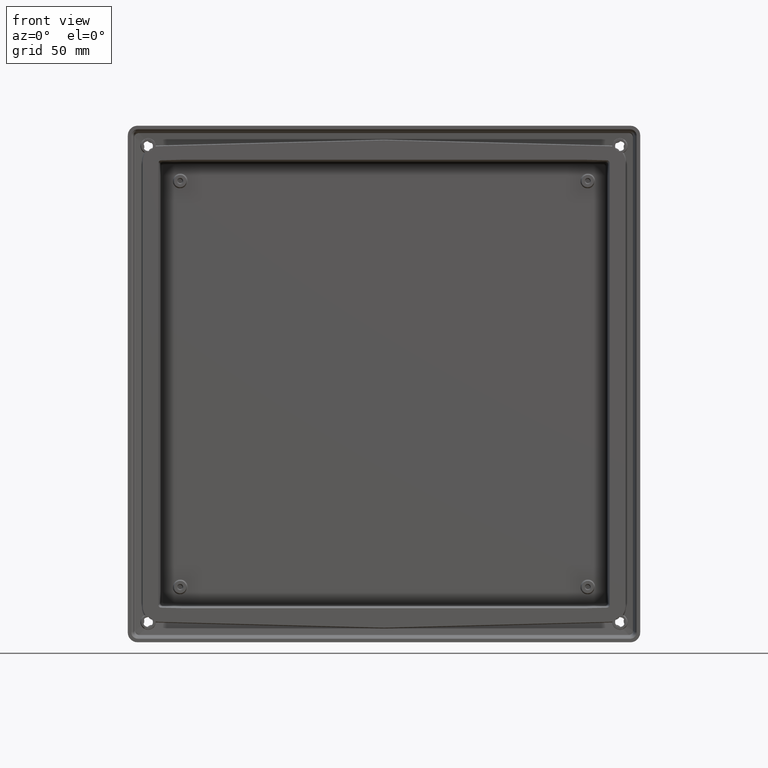
[diagram: clean part render]
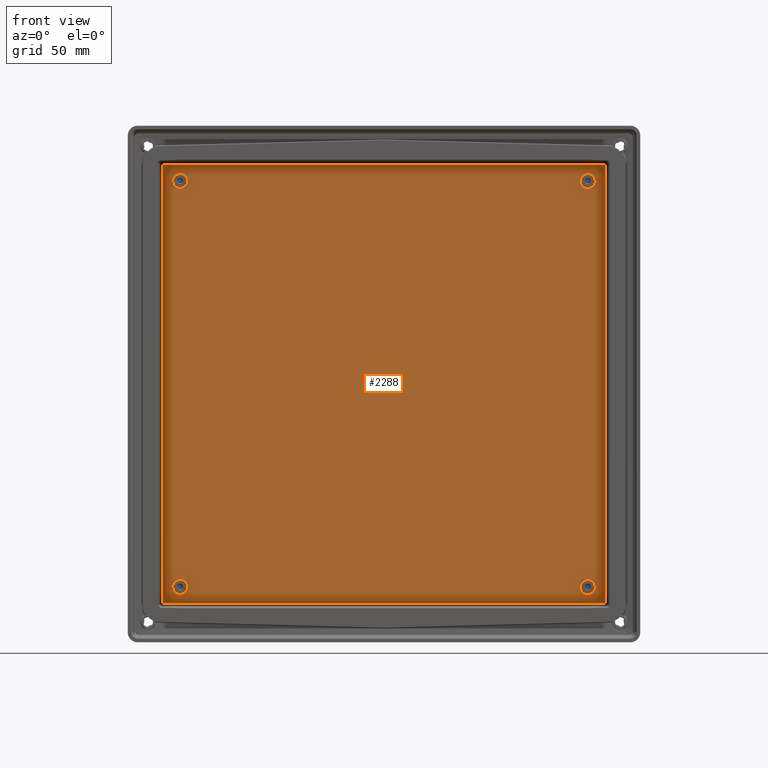
[diagram: same view with one face highlighted and labeled with its STEP entity id]
A machine part, front view. The second image highlights one B-rep face of the part: STEP entity #2288.
In plain terms, the highlighted planar face has unit normal (0, -1, -0).
Its self-contained STEP definition (entity closure, byte-faithful):
#272 = EDGE_CURVE ( 'NONE', #4415, #4402, #6032, .T. ) ;
#462 = EDGE_CURVE ( 'NONE', #3760, #3759, #6761, .T. ) ;
#480 = EDGE_CURVE ( 'NONE', #4885, #4884, #6762, .T. ) ;
#515 = VERTEX_POINT ( 'NONE', #6918 ) ;
#517 = EDGE_CURVE ( 'NONE', #515, #532, #6951, .T. ) ;
#526 = VERTEX_POINT ( 'NONE', #7014 ) ;
#528 = EDGE_CURVE ( 'NONE', #526, #515, #7052, .T. ) ;
#532 = VERTEX_POINT ( 'NONE', #7051 ) ;
#534 = EDGE_CURVE ( 'NONE', #532, #554, #7084, .T. ) ;
#554 = VERTEX_POINT ( 'NONE', #7166 ) ;
#588 = VERTEX_POINT ( 'NONE', #7229 ) ;
#590 = EDGE_CURVE ( 'NONE', #526, #588, #7228, .T. ) ;
#600 = EDGE_CURVE ( 'NONE', #4406, #617, #7285, .T. ) ;
#608 = EDGE_CURVE ( 'NONE', #554, #609, #7271, .T. ) ;
#609 = VERTEX_POINT ( 'NONE', #7270 ) ;
#616 = EDGE_CURVE ( 'NONE', #617, #609, #7292, .T. ) ;
#617 = VERTEX_POINT ( 'NONE', #7288 ) ;
#2268 = EDGE_LOOP ( 'NONE', ( #2269, #2270 ) ) ;
#2269 = ORIENTED_EDGE ( 'NONE', *, *, #4072, .F. ) ;
#2270 = ORIENTED_EDGE ( 'NONE', *, *, #3366, .F. ) ;
#2272 = EDGE_LOOP ( 'NONE', ( #2274, #2275, #2277, #2279, #2280, #2281, #2385, #2386, #2387, #2388, #2390, #2392, #2394, #2395 ) ) ;
#2274 = ORIENTED_EDGE ( 'NONE', *, *, #600, .T. ) ;
#2275 = ORIENTED_EDGE ( 'NONE', *, *, #616, .T. ) ;
#2277 = ORIENTED_EDGE ( 'NONE', *, *, #608, .F. ) ;
#2279 = ORIENTED_EDGE ( 'NONE', *, *, #534, .F. ) ;
#2280 = ORIENTED_EDGE ( 'NONE', *, *, #517, .F. ) ;
#2281 = ORIENTED_EDGE ( 'NONE', *, *, #528, .F. ) ;
#2288 = ADVANCED_FACE ( 'NONE', ( #11869, #11868, #11867, #11866, #11865 ), #11891, .T. ) ;
#2289 = EDGE_LOOP ( 'NONE', ( #2290, #2291 ) ) ;
#2290 = ORIENTED_EDGE ( 'NONE', *, *, #462, .T. ) ;
#2291 = ORIENTED_EDGE ( 'NONE', *, *, #3796, .T. ) ;
#2294 = EDGE_LOOP ( 'NONE', ( #2296, #2298 ) ) ;
#2296 = ORIENTED_EDGE ( 'NONE', *, *, #480, .T. ) ;
#2298 = ORIENTED_EDGE ( 'NONE', *, *, #4883, .T. ) ;
#2302 = EDGE_LOOP ( 'NONE', ( #2304, #2398 ) ) ;
#2304 = ORIENTED_EDGE ( 'NONE', *, *, #4625, .F. ) ;
#2385 = ORIENTED_EDGE ( 'NONE', *, *, #590, .T. ) ;
#2386 = ORIENTED_EDGE ( 'NONE', *, *, #3154, .T. ) ;
#2387 = ORIENTED_EDGE ( 'NONE', *, *, #4381, .F. ) ;
#2388 = ORIENTED_EDGE ( 'NONE', *, *, #4385, .T. ) ;
#2390 = ORIENTED_EDGE ( 'NONE', *, *, #4394, .T. ) ;
#2392 = ORIENTED_EDGE ( 'NONE', *, *, #4419, .T. ) ;
#2394 = ORIENTED_EDGE ( 'NONE', *, *, #272, .T. ) ;
#2395 = ORIENTED_EDGE ( 'NONE', *, *, #4409, .F. ) ;
#2398 = ORIENTED_EDGE ( 'NONE', *, *, #3369, .F. ) ;
#3154 = EDGE_CURVE ( 'NONE', #588, #4383, #13066, .T. ) ;
#3352 = VERTEX_POINT ( 'NONE', #13433 ) ;
#3364 = VERTEX_POINT ( 'NONE', #13441 ) ;
#3366 = EDGE_CURVE ( 'NONE', #3352, #3403, #13438, .T. ) ;
#3369 = EDGE_CURVE ( 'NONE', #3364, #3402, #13464, .T. ) ;
#3402 = VERTEX_POINT ( 'NONE', #13539 ) ;
#3403 = VERTEX_POINT ( 'NONE', #13538 ) ;
#3759 = VERTEX_POINT ( 'NONE', #14293 ) ;
#3760 = VERTEX_POINT ( 'NONE', #14292 ) ;
#3796 = EDGE_CURVE ( 'NONE', #3759, #3760, #14410, .T. ) ;
#4072 = EDGE_CURVE ( 'NONE', #3403, #3352, #15015, .T. ) ;
#4375 = VERTEX_POINT ( 'NONE', #15368 ) ;
#4381 = EDGE_CURVE ( 'NONE', #4399, #4383, #15402, .T. ) ;
#4383 = VERTEX_POINT ( 'NONE', #15391 ) ;
#4385 = EDGE_CURVE ( 'NONE', #4399, #4375, #15419, .T. ) ;
#4394 = EDGE_CURVE ( 'NONE', #4375, #4396, #15438, .T. ) ;
#4396 = VERTEX_POINT ( 'NONE', #15476 ) ;
#4399 = VERTEX_POINT ( 'NONE', #15475 ) ;
#4402 = VERTEX_POINT ( 'NONE', #15473 ) ;
#4406 = VERTEX_POINT ( 'NONE', #15467 ) ;
#4409 = EDGE_CURVE ( 'NONE', #4406, #4402, #15492, .T. ) ;
#4415 = VERTEX_POINT ( 'NONE', #15488 ) ;
#4419 = EDGE_CURVE ( 'NONE', #4396, #4415, #15480, .T. ) ;
#4625 = EDGE_CURVE ( 'NONE', #3402, #3364, #16001, .T. ) ;
#4883 = EDGE_CURVE ( 'NONE', #4884, #4885, #16649, .T. ) ;
#4884 = VERTEX_POINT ( 'NONE', #16648 ) ;
#4885 = VERTEX_POINT ( 'NONE', #16650 ) ;
#6032 = B_SPLINE_CURVE_WITH_KNOTS ( 'NONE', 3,
 ( #6053, #6052, #6051, #6050, #6049, #6048 ),
 .UNSPECIFIED., .F., .F.,
 ( 4, 1, 1, 4 ),
 ( 0.0000000000000000000, 0.0001286256969228537900, 0.0002554668567451399800, 0.0003845825721337195400 ),
 .UNSPECIFIED. ) ;
#6048 = CARTESIAN_POINT ( 'NONE',  ( -123.9672560892429700, 30.59999999999999800, -123.4263669262850300 ) ) ;
#6049 = CARTESIAN_POINT ( 'NONE',  ( -124.0113291131254100, 30.59999999999999100, -123.4250124329279900 ) ) ;
#6050 = CARTESIAN_POINT ( 'NONE',  ( -124.0950999604487800, 30.60000000000000100, -123.4119812375552100 ) ) ;
#6051 = CARTESIAN_POINT ( 'NONE',  ( -124.2148313400941100, 30.59999999999999800, -123.3596219549187800 ) ) ;
#6052 = CARTESIAN_POINT ( 'NONE',  ( -124.2811274808965200, 30.59999999999999400, -123.3070358784442400 ) ) ;
#6053 = CARTESIAN_POINT ( 'NONE',  ( -124.3119224345850000, 30.59999999999999800, -123.2757151033670200 ) ) ;
#6747 = CARTESIAN_POINT ( 'NONE',  ( 114.7500000000000000, 30.60000000000000100, 110.0671556125964500 ) ) ;
#6748 = CARTESIAN_POINT ( 'NONE',  ( 115.2139259025434900, 30.60000000000000100, 110.0707175609213000 ) ) ;
#6749 = CARTESIAN_POINT ( 'NONE',  ( 116.0900247012520500, 30.60000000000000100, 110.2096243394791800 ) ) ;
#6750 = CARTESIAN_POINT ( 'NONE',  ( 117.3036622821863700, 30.60000000000000100, 110.8349760655702200 ) ) ;
#6751 = CARTESIAN_POINT ( 'NONE',  ( 118.2465816309453100, 30.60000000000000500, 111.7937700044578700 ) ) ;
#6752 = CARTESIAN_POINT ( 'NONE',  ( 118.8487745289157300, 30.59999999999999800, 112.9917617618990700 ) ) ;
#6753 = CARTESIAN_POINT ( 'NONE',  ( 119.0526510000454900, 30.60000000000000100, 114.3172440723050200 ) ) ;
#6754 = CARTESIAN_POINT ( 'NONE',  ( 118.8383528366937600, 30.59999999999999800, 115.6400547522702300 ) ) ;
#6755 = CARTESIAN_POINT ( 'NONE',  ( 118.2291093426102700, 30.59999999999999800, 116.8291189268627200 ) ) ;
#6756 = CARTESIAN_POINT ( 'NONE',  ( 117.2873423866218400, 30.60000000000001200, 117.7753126559558200 ) ) ;
#6757 = CARTESIAN_POINT ( 'NONE',  ( 116.0816868034681000, 30.59999999999999400, 118.3920151684649400 ) ) ;
#6758 = CARTESIAN_POINT ( 'NONE',  ( 115.2116803573269600, 30.60000000000000900, 118.5293551732216200 ) ) ;
#6759 = CARTESIAN_POINT ( 'NONE',  ( 114.7500000000000000, 30.60000000000000100, 118.5328443874035400 ) ) ;
#6761 = B_SPLINE_CURVE_WITH_KNOTS ( 'NONE', 3,
 ( #6759, #6758, #6757, #6756, #6755, #6754, #6753, #6752, #6751, #6750, #6749, #6748, #6747 ),
 .UNSPECIFIED., .F., .F.,
 ( 4, 1, 1, 1, 1, 1, 1, 1, 1, 1, 4 ),
 ( 0.0000000000000000000, 0.001336172355024017600, 0.002662245945109110500, 0.003971357387798746300, 0.005283179838787769100, 0.006605105878817337500, 0.007926289166284780600, 0.009241207763608982900, 0.01056176399086728800, 0.01190107501762819300, 0.01324324364178452000 ),
 .UNSPECIFIED. ) ;
#6762 = B_SPLINE_CURVE_WITH_KNOTS ( 'NONE', 3,
 ( #6796, #6795, #6794, #6793, #6792, #6832, #6831, #6830, #6829, #6828, #6827, #6826, #6825 ),
 .UNSPECIFIED., .F., .F.,
 ( 4, 1, 1, 1, 1, 1, 1, 1, 1, 1, 4 ),
 ( 0.0000000000000000000, 0.001336170975049366600, 0.002662239487400773200, 0.003971341906226373200, 0.005283152191282326100, 0.006605063685648469900, 0.007926231823170343200, 0.009241136680444933500, 0.01056168214215529900, 0.01190098711050690600, 0.01324315415126927500 ),
 .UNSPECIFIED. ) ;
#6792 = CARTESIAN_POINT ( 'NONE',  ( 118.2290804175725300, 30.59999999999999100, -111.7709012637937900 ) ) ;
#6793 = CARTESIAN_POINT ( 'NONE',  ( 117.2873270654193800, 30.60000000000000500, -110.8247075043015000 ) ) ;
#6794 = CARTESIAN_POINT ( 'NONE',  ( 116.0816840373387900, 30.59999999999999800, -110.2079914829309600 ) ) ;
#6795 = CARTESIAN_POINT ( 'NONE',  ( 115.2116803640092300, 30.59999999999999400, -110.0706467869113100 ) ) ;
#6796 = CARTESIAN_POINT ( 'NONE',  ( 114.7500000000000000, 30.59999999999999800, -110.0671556125964500 ) ) ;
#6825 = CARTESIAN_POINT ( 'NONE',  ( 114.7500000000000000, 30.59999999999999800, -118.5328443874035400 ) ) ;
#6826 = CARTESIAN_POINT ( 'NONE',  ( 115.2139259998007600, 30.59999999999999800, -118.5292803724726300 ) ) ;
#6827 = CARTESIAN_POINT ( 'NONE',  ( 116.0900215758648800, 30.59999999999999100, -118.3903683652125400 ) ) ;
#6828 = CARTESIAN_POINT ( 'NONE',  ( 117.3036438236290600, 30.60000000000000100, -117.7649996961782600 ) ) ;
#6829 = CARTESIAN_POINT ( 'NONE',  ( 118.2465470456645700, 30.59999999999999100, -116.8062060610072600 ) ) ;
#6830 = CARTESIAN_POINT ( 'NONE',  ( 118.8487274637823500, 30.60000000000000100, -115.6082233355156300 ) ) ;
#6831 = CARTESIAN_POINT ( 'NONE',  ( 119.0525994640728600, 30.59999999999998700, -114.2827560488970100 ) ) ;
#6832 = CARTESIAN_POINT ( 'NONE',  ( 118.8383098948030600, 30.59999999999999400, -112.9599590967234000 ) ) ;
#6918 = CARTESIAN_POINT ( 'NONE',  ( 124.4535003197779900, 30.59999999999999800, 122.9272232616049900 ) ) ;
#6948 = DIRECTION ( 'NONE',  ( 0.0000000000000000000, 0.0000000000000000000, -1.000000000000000000 ) ) ;
#6949 = VECTOR ( 'NONE', #6948, 1000.000000000000000 ) ;
#6950 = CARTESIAN_POINT ( 'NONE',  ( 124.4535003197779900, 30.59999999999999800, 6.938893903907228400E-015 ) ) ;
#6951 = LINE ( 'NONE', #6950, #6949 ) ;
#7014 = CARTESIAN_POINT ( 'NONE',  ( 123.9672560892585400, 30.59999999999999800, 123.4263669262821800 ) ) ;
#7045 = CARTESIAN_POINT ( 'NONE',  ( 124.0720234315977400, 30.59999006879729300, 123.4082272750438100 ) ) ;
#7046 = CARTESIAN_POINT ( 'NONE',  ( 124.0546071313658100, 30.59999239599920200, 123.4125815830251600 ) ) ;
#7047 = CARTESIAN_POINT ( 'NONE',  ( 124.0076681379355500, 30.59999798333080500, 123.4224237169338100 ) ) ;
#7048 = CARTESIAN_POINT ( 'NONE',  ( 123.9835150808930800, 30.59999984667859300, 123.4248160824459600 ) ) ;
#7049 = CARTESIAN_POINT ( 'NONE',  ( 123.9672560892585400, 30.59999999999999800, 123.4263669262821800 ) ) ;
#7051 = CARTESIAN_POINT ( 'NONE',  ( 124.4535003197779900, 30.59999999999999800, -122.9272232616049800 ) ) ;
#7052 = B_SPLINE_CURVE_WITH_KNOTS ( 'NONE', 3,
 ( #7049, #7048, #7047, #7046, #7045, #7107, #7106, #7105, #7104, #7103, #7102, #7101, #7100, #7099, #7098, #7097, #7096, #7095, #7094, #7093, #7092, #7091, #7090, #7089 ),
 .UNSPECIFIED., .F., .F.,
 ( 4, 2, 2, 2, 2, 2, 2, 1, 1, 2, 2, 2, 4 ),
 ( 0.0000000000000000000, 0.1250000000002521900, 0.1875000000003573000, 0.2187500000004098400, 0.2500000000004624100, 0.3750000000006752900, 0.4375000000007817100, 0.4687500000008564800, 0.4843750000009438000, 0.4921875000009350900, 0.5000000000009263700, 0.7500000000004631900, 1.000000000000000000 ),
 .UNSPECIFIED. ) ;
#7075 = CARTESIAN_POINT ( 'NONE',  ( 124.3424862994882700, 30.60000000000000100, -123.2440396633723500 ) ) ;
#7076 = CARTESIAN_POINT ( 'NONE',  ( 124.3933472950290600, 30.60000000000000500, -123.1763031886689800 ) ) ;
#7077 = CARTESIAN_POINT ( 'NONE',  ( 124.4425127754625300, 30.59999999999999400, -123.0552253401617400 ) ) ;
#7078 = CARTESIAN_POINT ( 'NONE',  ( 124.4533066579424600, 30.59999999999999400, -122.9712240385339200 ) ) ;
#7079 = CARTESIAN_POINT ( 'NONE',  ( 124.4535003197779900, 30.59999999999999800, -122.9272232616049800 ) ) ;
#7084 = B_SPLINE_CURVE_WITH_KNOTS ( 'NONE', 3,
 ( #7079, #7078, #7077, #7076, #7075, #7137 ),
 .UNSPECIFIED., .F., .F.,
 ( 4, 1, 1, 4 ),
 ( 0.0000000000000000000, 0.0001288513043900911500, 0.0002556918797932907400, 0.0003845825707242606700 ),
 .UNSPECIFIED. ) ;
#7089 = CARTESIAN_POINT ( 'NONE',  ( 124.4535003197779900, 30.59999999999999800, 122.9272232616049900 ) ) ;
#7090 = CARTESIAN_POINT ( 'NONE',  ( 124.4502709520143400, 30.59999992671623700, 122.9709088000139000 ) ) ;
#7091 = CARTESIAN_POINT ( 'NONE',  ( 124.4423094708205500, 30.59998542457788400, 123.0245218860399500 ) ) ;
#7092 = CARTESIAN_POINT ( 'NONE',  ( 124.3990179759154600, 30.59996265368295800, 123.1436669858443500 ) ) ;
#7093 = CARTESIAN_POINT ( 'NONE',  ( 124.3631107024213000, 30.59995426880728400, 123.2094962680889300 ) ) ;
#7094 = CARTESIAN_POINT ( 'NONE',  ( 124.3031628562005300, 30.59995426863524400, 123.2710005991489500 ) ) ;
#7095 = CARTESIAN_POINT ( 'NONE',  ( 124.3030210900263900, 30.59995427756814100, 123.2711387711242100 ) ) ;
#7096 = CARTESIAN_POINT ( 'NONE',  ( 124.3010135356910600, 30.59995431327334000, 123.2731680250048500 ) ) ;
#7097 = CARTESIAN_POINT ( 'NONE',  ( 124.2979527057489500, 30.59995439358978000, 123.2762388699146100 ) ) ;
#7098 = CARTESIAN_POINT ( 'NONE',  ( 124.2904577082839800, 30.59995476774725600, 123.2835854357575000 ) ) ;
#7099 = CARTESIAN_POINT ( 'NONE',  ( 124.2834053792543600, 30.59995540569903100, 123.2901668308444800 ) ) ;
#7100 = CARTESIAN_POINT ( 'NONE',  ( 124.2684016631783000, 30.59995708618468800, 123.3036286790686400 ) ) ;
#7101 = CARTESIAN_POINT ( 'NONE',  ( 124.2571997960466900, 30.59995874985676400, 123.3130064062882700 ) ) ;
#7102 = CARTESIAN_POINT ( 'NONE',  ( 124.2195097002303000, 30.59996508144926600, 123.3415627189949100 ) ) ;
#7103 = CARTESIAN_POINT ( 'NONE',  ( 124.1888953154262400, 30.59997115377401800, 123.3612622756720900 ) ) ;
#7104 = CARTESIAN_POINT ( 'NONE',  ( 124.1425054589804800, 30.59997914870524500, 123.3828561706454700 ) ) ;
#7105 = CARTESIAN_POINT ( 'NONE',  ( 124.1305606976137500, 30.59998113729784900, 123.3879525816673900 ) ) ;
#7106 = CARTESIAN_POINT ( 'NONE',  ( 124.1102428809119400, 30.59998438173371600, 123.3957895325583800 ) ) ;
#7107 = CARTESIAN_POINT ( 'NONE',  ( 124.1004073971829300, 30.59998588957245100, 123.3992107748514700 ) ) ;
#7137 = CARTESIAN_POINT ( 'NONE',  ( 124.3119224345850000, 30.59999999999999800, -123.2757151033670200 ) ) ;
#7166 = CARTESIAN_POINT ( 'NONE',  ( 124.3119224345850000, 30.59999999999999800, -123.2757151033670200 ) ) ;
#7215 = DIRECTION ( 'NONE',  ( -0.9996573249755571500, 0.0000000000000000000, 0.02617694830787838400 ) ) ;
#7226 = VECTOR ( 'NONE', #7215, 1000.000000000000100 ) ;
#7227 = CARTESIAN_POINT ( 'NONE',  ( 118.7063811002726400, 30.59999999999999800, 123.5641277861291100 ) ) ;
#7228 = LINE ( 'NONE', #7227, #7226 ) ;
#7229 = CARTESIAN_POINT ( 'NONE',  ( 113.4455061112867300, 30.59999999999999800, 123.7018886459760000 ) ) ;
#7264 = CARTESIAN_POINT ( 'NONE',  ( 123.9672560892429700, 30.59999999999999800, -123.4263669262850300 ) ) ;
#7265 = CARTESIAN_POINT ( 'NONE',  ( 124.0113291131254100, 30.59999999999999100, -123.4250124329279900 ) ) ;
#7266 = CARTESIAN_POINT ( 'NONE',  ( 124.0950999604487800, 30.60000000000000100, -123.4119812375552100 ) ) ;
#7267 = CARTESIAN_POINT ( 'NONE',  ( 124.2148313400941100, 30.59999999999999800, -123.3596219549187800 ) ) ;
#7268 = CARTESIAN_POINT ( 'NONE',  ( 124.2811274808965200, 30.59999999999999400, -123.3070358784442400 ) ) ;
#7269 = CARTESIAN_POINT ( 'NONE',  ( 124.3119224345850000, 30.59999999999999800, -123.2757151033670200 ) ) ;
#7270 = CARTESIAN_POINT ( 'NONE',  ( 123.9672560892429700, 30.59999999999999800, -123.4263669262850300 ) ) ;
#7271 = B_SPLINE_CURVE_WITH_KNOTS ( 'NONE', 3,
 ( #7269, #7268, #7267, #7266, #7265, #7264 ),
 .UNSPECIFIED., .F., .F.,
 ( 4, 1, 1, 4 ),
 ( 0.0000000000000000000, 0.0001286256969228537900, 0.0002554668567451399800, 0.0003845825721337195400 ),
 .UNSPECIFIED. ) ;
#7282 = DIRECTION ( 'NONE',  ( 1.000000000000000000, 0.0000000000000000000, 0.0000000000000000000 ) ) ;
#7283 = VECTOR ( 'NONE', #7282, 1000.000000000000000 ) ;
#7284 = CARTESIAN_POINT ( 'NONE',  ( 0.0000000000000000000, 30.59999999999999800, -123.7018886459760000 ) ) ;
#7285 = LINE ( 'NONE', #7284, #7283 ) ;
#7288 = CARTESIAN_POINT ( 'NONE',  ( 113.4455061113743600, 30.59999999999999800, -123.7018886459760000 ) ) ;
#7289 = DIRECTION ( 'NONE',  ( 0.9996573249755574800, 0.0000000000000000000, 0.02617694830786483600 ) ) ;
#7290 = VECTOR ( 'NONE', #7289, 1000.000000000000200 ) ;
#7291 = CARTESIAN_POINT ( 'NONE',  ( 118.7063811003086600, 30.59999999999999800, -123.5641277861305100 ) ) ;
#7292 = LINE ( 'NONE', #7291, #7290 ) ;
#11861 = DIRECTION ( 'NONE',  ( 0.0000000000000000000, 0.0000000000000000000, -1.000000000000000000 ) ) ;
#11862 = DIRECTION ( 'NONE',  ( 0.0000000000000000000, -1.000000000000000000, -0.0000000000000000000 ) ) ;
#11863 = CARTESIAN_POINT ( 'NONE',  ( -78.65000000000000600, 30.59999999999999800, 129.5000000000000000 ) ) ;
#11864 = AXIS2_PLACEMENT_3D ( 'NONE', #11863, #11862, #11861 ) ;
#11865 = FACE_OUTER_BOUND ( 'NONE', #2272, .T. ) ;
#11866 = FACE_BOUND ( 'NONE', #2268, .T. ) ;
#11867 = FACE_BOUND ( 'NONE', #2302, .T. ) ;
#11868 = FACE_BOUND ( 'NONE', #2294, .T. ) ;
#11869 = FACE_BOUND ( 'NONE', #2289, .T. ) ;
#11891 = PLANE ( 'NONE',  #11864 ) ;
#13063 = DIRECTION ( 'NONE',  ( -1.000000000000000000, 0.0000000000000000000, 0.0000000000000000000 ) ) ;
#13064 = VECTOR ( 'NONE', #13063, 1000.000000000000000 ) ;
#13065 = CARTESIAN_POINT ( 'NONE',  ( 0.0000000000000000000, 30.59999999999999800, 123.7018886459760000 ) ) ;
#13066 = LINE ( 'NONE', #13065, #13064 ) ;
#13433 = CARTESIAN_POINT ( 'NONE',  ( -114.7500000000000000, 30.59999999999999800, 110.0671556125964500 ) ) ;
#13438 = B_SPLINE_CURVE_WITH_KNOTS ( 'NONE', 3,
 ( #13463, #13462, #13461, #13460, #13459, #13458, #13457, #13456, #13455, #13454, #13453, #13452, #13451 ),
 .UNSPECIFIED., .F., .F.,
 ( 4, 1, 1, 1, 1, 1, 1, 1, 1, 1, 4 ),
 ( 0.0000000000000000000, 0.001336170975050143500, 0.002662239487401491000, 0.003971341906226669900, 0.005283152191282206400, 0.006605063685647926000, 0.007926231823169904400, 0.009241136680445386300, 0.01056168214215639900, 0.01190098711050799300, 0.01324315415126929700 ),
 .UNSPECIFIED. ) ;
#13441 = CARTESIAN_POINT ( 'NONE',  ( -114.7500000000000000, 30.59999999999999800, -118.5328443874035400 ) ) ;
#13451 = CARTESIAN_POINT ( 'NONE',  ( -114.7500000000000000, 30.59999999999999800, 118.5328443874035400 ) ) ;
#13452 = CARTESIAN_POINT ( 'NONE',  ( -114.2860740001996500, 30.60000000000000100, 118.5292803724726300 ) ) ;
#13453 = CARTESIAN_POINT ( 'NONE',  ( -113.4099784241358200, 30.60000000000000100, 118.3903683652127200 ) ) ;
#13454 = CARTESIAN_POINT ( 'NONE',  ( -112.1963561763716800, 30.59999999999999400, 117.7649996961787900 ) ) ;
#13455 = CARTESIAN_POINT ( 'NONE',  ( -111.2534529543355100, 30.60000000000000100, 116.8062060610076900 ) ) ;
#13456 = CARTESIAN_POINT ( 'NONE',  ( -110.6512725362175800, 30.59999999999999800, 115.6082233355154200 ) ) ;
#13457 = CARTESIAN_POINT ( 'NONE',  ( -110.4474005359270900, 30.60000000000000100, 114.2827560488966300 ) ) ;
#13458 = CARTESIAN_POINT ( 'NONE',  ( -110.6616901051970700, 30.59999999999999400, 112.9599590967233000 ) ) ;
#13459 = CARTESIAN_POINT ( 'NONE',  ( -111.2709195824272300, 30.60000000000000100, 111.7709012637940000 ) ) ;
#13460 = CARTESIAN_POINT ( 'NONE',  ( -112.2126729345801800, 30.59999999999999800, 110.8247075043019000 ) ) ;
#13461 = CARTESIAN_POINT ( 'NONE',  ( -113.4183159626607300, 30.59999999999999800, 110.2079914829310400 ) ) ;
#13462 = CARTESIAN_POINT ( 'NONE',  ( -114.2883196359904800, 30.59999999999999800, 110.0706467869113400 ) ) ;
#13463 = CARTESIAN_POINT ( 'NONE',  ( -114.7500000000000000, 30.59999999999999800, 110.0671556125964500 ) ) ;
#13464 = B_SPLINE_CURVE_WITH_KNOTS ( 'NONE', 3,
 ( #13503, #13502, #13501, #13500, #13499, #13498, #13497, #13496, #13495, #13494, #13493, #13492, #13491 ),
 .UNSPECIFIED., .F., .F.,
 ( 4, 1, 1, 1, 1, 1, 1, 1, 1, 1, 4 ),
 ( 0.0000000000000000000, 0.001336170975050417400, 0.002662239487401995800, 0.003971341906227361100, 0.005283152191283188200, 0.006605063685649148100, 0.007926231823171116900, 0.009241136680446595400, 0.01056168214215763400, 0.01190098711050885900, 0.01324315415126931300 ),
 .UNSPECIFIED. ) ;
#13491 = CARTESIAN_POINT ( 'NONE',  ( -114.7500000000000000, 30.59999999999984900, -110.0671556125964200 ) ) ;
#13492 = CARTESIAN_POINT ( 'NONE',  ( -114.2860740001999500, 30.59999999999999400, -110.0707196275273800 ) ) ;
#13493 = CARTESIAN_POINT ( 'NONE',  ( -113.4099784241364800, 30.59999999999999100, -110.2096316347870900 ) ) ;
#13494 = CARTESIAN_POINT ( 'NONE',  ( -112.1963561763726000, 30.59999999999999800, -110.8350003038205500 ) ) ;
#13495 = CARTESIAN_POINT ( 'NONE',  ( -111.2534529543361700, 30.59999999999999400, -111.7937939389912700 ) ) ;
#13496 = CARTESIAN_POINT ( 'NONE',  ( -110.6512725362180000, 30.60000000000000100, -112.9917766644834000 ) ) ;
#13497 = CARTESIAN_POINT ( 'NONE',  ( -110.4474005359271300, 30.60000000000000100, -114.3172439511022000 ) ) ;
#13498 = CARTESIAN_POINT ( 'NONE',  ( -110.6616901051966400, 30.60000000000000100, -115.6400409032758000 ) ) ;
#13499 = CARTESIAN_POINT ( 'NONE',  ( -111.2709195824268800, 30.60000000000000100, -116.8290987362053400 ) ) ;
#13500 = CARTESIAN_POINT ( 'NONE',  ( -112.2126729345796700, 30.59999999999999800, -117.7752924956978100 ) ) ;
#13501 = CARTESIAN_POINT ( 'NONE',  ( -113.4183159626605000, 30.60000000000000500, -118.3920085170688900 ) ) ;
#13502 = CARTESIAN_POINT ( 'NONE',  ( -114.2883196359904000, 30.59999999999999800, -118.5293532130886500 ) ) ;
#13503 = CARTESIAN_POINT ( 'NONE',  ( -114.7500000000000000, 30.59999999999999800, -118.5328443874035400 ) ) ;
#13538 = CARTESIAN_POINT ( 'NONE',  ( -114.7500000000000000, 30.59999999999999800, 118.5328443874035400 ) ) ;
#13539 = CARTESIAN_POINT ( 'NONE',  ( -114.7500000000000000, 30.59999999999984900, -110.0671556125964200 ) ) ;
#14292 = CARTESIAN_POINT ( 'NONE',  ( 114.7500000000000000, 30.60000000000000100, 118.5328443874035400 ) ) ;
#14293 = CARTESIAN_POINT ( 'NONE',  ( 114.7500000000000000, 30.60000000000000100, 110.0671556125964500 ) ) ;
#14392 = CARTESIAN_POINT ( 'NONE',  ( 114.7500000000000000, 30.60000000000000100, 118.5328443874035400 ) ) ;
#14393 = CARTESIAN_POINT ( 'NONE',  ( 114.2860740974568300, 30.60000000000000100, 118.5292824390786700 ) ) ;
#14394 = CARTESIAN_POINT ( 'NONE',  ( 113.4099752987485500, 30.60000000000000100, 118.3903756605209500 ) ) ;
#14395 = CARTESIAN_POINT ( 'NONE',  ( 112.1963377178142700, 30.60000000000000100, 117.7650239344303000 ) ) ;
#14396 = CARTESIAN_POINT ( 'NONE',  ( 111.2534183690548600, 30.60000000000000100, 116.8062299955425200 ) ) ;
#14397 = CARTESIAN_POINT ( 'NONE',  ( 110.6512254710842300, 30.59999999999999800, 115.6082382381009500 ) ) ;
#14398 = CARTESIAN_POINT ( 'NONE',  ( 110.4473489999545400, 30.60000000000000500, 114.2827559276948200 ) ) ;
#14399 = CARTESIAN_POINT ( 'NONE',  ( 110.6616471633063000, 30.60000000000000100, 112.9599452477294500 ) ) ;
#14400 = CARTESIAN_POINT ( 'NONE',  ( 111.2708906573900500, 30.60000000000000100, 111.7708810731367400 ) ) ;
#14401 = CARTESIAN_POINT ( 'NONE',  ( 112.2126576133788900, 30.59999999999999800, 110.8246873440436500 ) ) ;
#14402 = CARTESIAN_POINT ( 'NONE',  ( 113.4183131965325800, 30.60000000000000100, 110.2079848315348900 ) ) ;
#14403 = CARTESIAN_POINT ( 'NONE',  ( 114.2883196426734100, 30.60000000000000100, 110.0706448267783800 ) ) ;
#14404 = CARTESIAN_POINT ( 'NONE',  ( 114.7500000000000000, 30.60000000000000100, 110.0671556125964500 ) ) ;
#14410 = B_SPLINE_CURVE_WITH_KNOTS ( 'NONE', 3,
 ( #14404, #14403, #14402, #14401, #14400, #14399, #14398, #14397, #14396, #14395, #14394, #14393, #14392 ),
 .UNSPECIFIED., .F., .F.,
 ( 4, 1, 1, 1, 1, 1, 1, 1, 1, 1, 4 ),
 ( 0.0000000000000000000, 0.001336172355023137900, 0.002662245945108041000, 0.003971357387798049800, 0.005283179838787743900, 0.006605105878817175300, 0.007926289166284534300, 0.009241207763609506800, 0.01056176399086825400, 0.01190107501762908300, 0.01324324364178454400 ),
 .UNSPECIFIED. ) ;
#15015 = B_SPLINE_CURVE_WITH_KNOTS ( 'NONE', 3,
 ( #15048, #15047, #15046, #15045, #15044, #15043, #15042, #15041, #15040, #15039, #15038, #15037, #15036 ),
 .UNSPECIFIED., .F., .F.,
 ( 4, 1, 1, 1, 1, 1, 1, 1, 1, 1, 4 ),
 ( 0.0000000000000000000, 0.001336170975051023500, 0.002662239487402547800, 0.003971341906227373300, 0.005283152191282213300, 0.006605063685648079500, 0.007926231823170162800, 0.009241136680444876300, 0.01056168214215545900, 0.01190098711050711400, 0.01324315415126929700 ),
 .UNSPECIFIED. ) ;
#15036 = CARTESIAN_POINT ( 'NONE',  ( -114.7500000000000000, 30.59999999999999800, 110.0671556125964500 ) ) ;
#15037 = CARTESIAN_POINT ( 'NONE',  ( -115.2139259998006800, 30.60000000000000100, 110.0707196275273800 ) ) ;
#15038 = CARTESIAN_POINT ( 'NONE',  ( -116.0900215758648100, 30.59999999999999400, 110.2096316347873700 ) ) ;
#15039 = CARTESIAN_POINT ( 'NONE',  ( -117.3036438236289500, 30.60000000000000100, 110.8350003038217400 ) ) ;
#15040 = CARTESIAN_POINT ( 'NONE',  ( -118.2465470456646700, 30.60000000000000100, 111.7937939389927100 ) ) ;
#15041 = CARTESIAN_POINT ( 'NONE',  ( -118.8487274637824400, 30.59999999999999400, 112.9917766644845600 ) ) ;
#15042 = CARTESIAN_POINT ( 'NONE',  ( -119.0525994640729300, 30.60000000000000100, 114.3172439511032200 ) ) ;
#15043 = CARTESIAN_POINT ( 'NONE',  ( -118.8383098948030200, 30.59999999999999400, 115.6400409032764100 ) ) ;
#15044 = CARTESIAN_POINT ( 'NONE',  ( -118.2290804175730700, 30.60000000000000100, 116.8290987362054100 ) ) ;
#15045 = CARTESIAN_POINT ( 'NONE',  ( -117.2873270654205800, 30.59999999999999400, 117.7752924956975400 ) ) ;
#15046 = CARTESIAN_POINT ( 'NONE',  ( -116.0816840373399400, 30.60000000000000900, 118.3920085170688200 ) ) ;
#15047 = CARTESIAN_POINT ( 'NONE',  ( -115.2116803640098400, 30.59999999999999400, 118.5293532130886500 ) ) ;
#15048 = CARTESIAN_POINT ( 'NONE',  ( -114.7500000000000000, 30.59999999999999800, 118.5328443874035400 ) ) ;
#15368 = CARTESIAN_POINT ( 'NONE',  ( -124.4535003197779900, 30.59999999999999800, 122.9272232616049900 ) ) ;
#15391 = CARTESIAN_POINT ( 'NONE',  ( -113.4455061112867300, 30.59999999999999800, 123.7018886459760000 ) ) ;
#15393 = DIRECTION ( 'NONE',  ( 0.9996573249755571500, 0.0000000000000000000, 0.02617694830787838400 ) ) ;
#15394 = VECTOR ( 'NONE', #15393, 1000.000000000000100 ) ;
#15401 = CARTESIAN_POINT ( 'NONE',  ( -118.7063811002726400, 30.59999999999999800, 123.5641277861291100 ) ) ;
#15402 = LINE ( 'NONE', #15401, #15394 ) ;
#15407 = CARTESIAN_POINT ( 'NONE',  ( -124.4535003197779900, 30.59999999999999800, 122.9272232616049900 ) ) ;
#15408 = CARTESIAN_POINT ( 'NONE',  ( -124.4478534338811400, 30.60000000000000100, 122.9975175665733600 ) ) ;
#15409 = CARTESIAN_POINT ( 'NONE',  ( -124.4331168567166900, 30.60000000000000100, 123.0599960577163900 ) ) ;
#15410 = CARTESIAN_POINT ( 'NONE',  ( -124.3854643198524200, 30.60000000000000100, 123.1693214123519100 ) ) ;
#15411 = CARTESIAN_POINT ( 'NONE',  ( -124.3489537723381600, 30.59999999999999400, 123.2232682348627000 ) ) ;
#15412 = CARTESIAN_POINT ( 'NONE',  ( -124.2822705845016700, 30.60000000000000500, 123.2913676840718900 ) ) ;
#15413 = CARTESIAN_POINT ( 'NONE',  ( -124.2564888240287500, 30.59999999999999400, 123.3138562630594400 ) ) ;
#15414 = CARTESIAN_POINT ( 'NONE',  ( -124.2055838428126200, 30.60000000000000100, 123.3504793918852400 ) ) ;
#15415 = CARTESIAN_POINT ( 'NONE',  ( -124.1791661883830900, 30.59999999999999100, 123.3659358674431700 ) ) ;
#15416 = CARTESIAN_POINT ( 'NONE',  ( -124.0970177336301100, 30.60000000000000100, 123.4037400275521200 ) ) ;
#15417 = CARTESIAN_POINT ( 'NONE',  ( -124.0362623833610600, 30.60000000000000100, 123.4193363840322100 ) ) ;
#15418 = CARTESIAN_POINT ( 'NONE',  ( -123.9672560892585400, 30.59999999999999800, 123.4263669262821800 ) ) ;
#15419 = B_SPLINE_CURVE_WITH_KNOTS ( 'NONE', 3,
 ( #15418, #15417, #15416, #15415, #15414, #15413, #15412, #15411, #15410, #15409, #15408, #15407 ),
 .UNSPECIFIED., .F., .F.,
 ( 4, 2, 2, 2, 2, 4 ),
 ( 0.0000000000000000000, 0.2499999999999819000, 0.3749999999999849000, 0.4999999999999879000, 0.7499999999999938900, 1.000000000000000000 ),
 .UNSPECIFIED. ) ;
#15438 = LINE ( 'NONE', #15479, #15478 ) ;
#15467 = CARTESIAN_POINT ( 'NONE',  ( -113.4455061113743600, 30.59999999999999800, -123.7018886459760000 ) ) ;
#15473 = CARTESIAN_POINT ( 'NONE',  ( -123.9672560892429700, 30.59999999999999800, -123.4263669262850300 ) ) ;
#15475 = CARTESIAN_POINT ( 'NONE',  ( -123.9672560892585400, 30.59999999999999800, 123.4263669262821800 ) ) ;
#15476 = CARTESIAN_POINT ( 'NONE',  ( -124.4535003197779900, 30.59999999999999800, -122.9272232616049800 ) ) ;
#15477 = DIRECTION ( 'NONE',  ( 0.0000000000000000000, 0.0000000000000000000, -1.000000000000000000 ) ) ;
#15478 = VECTOR ( 'NONE', #15477, 1000.000000000000000 ) ;
#15479 = CARTESIAN_POINT ( 'NONE',  ( -124.4535003197779900, 30.59999999999999800, 6.938893903907228400E-015 ) ) ;
#15480 = B_SPLINE_CURVE_WITH_KNOTS ( 'NONE', 3,
 ( #15547, #15546, #15545, #15544, #15542, #15541 ),
 .UNSPECIFIED., .F., .F.,
 ( 4, 1, 1, 4 ),
 ( 0.0000000000000000000, 0.0001288513043900911500, 0.0002556918797932907400, 0.0003845825707242606700 ),
 .UNSPECIFIED. ) ;
#15488 = CARTESIAN_POINT ( 'NONE',  ( -124.3119224345850000, 30.59999999999999800, -123.2757151033670200 ) ) ;
#15489 = DIRECTION ( 'NONE',  ( -0.9996573249755574800, 0.0000000000000000000, 0.02617694830786483600 ) ) ;
#15490 = VECTOR ( 'NONE', #15489, 1000.000000000000200 ) ;
#15491 = CARTESIAN_POINT ( 'NONE',  ( -118.7063811003086600, 30.59999999999999800, -123.5641277861305100 ) ) ;
#15492 = LINE ( 'NONE', #15491, #15490 ) ;
#15541 = CARTESIAN_POINT ( 'NONE',  ( -124.3119224345850000, 30.59999999999999800, -123.2757151033670200 ) ) ;
#15542 = CARTESIAN_POINT ( 'NONE',  ( -124.3424862994882700, 30.60000000000000100, -123.2440396633723500 ) ) ;
#15544 = CARTESIAN_POINT ( 'NONE',  ( -124.3933472950290600, 30.60000000000000500, -123.1763031886689800 ) ) ;
#15545 = CARTESIAN_POINT ( 'NONE',  ( -124.4425127754625300, 30.59999999999999400, -123.0552253401617400 ) ) ;
#15546 = CARTESIAN_POINT ( 'NONE',  ( -124.4533066579424600, 30.59999999999999400, -122.9712240385339200 ) ) ;
#15547 = CARTESIAN_POINT ( 'NONE',  ( -124.4535003197779900, 30.59999999999999800, -122.9272232616049800 ) ) ;
#15996 = CARTESIAN_POINT ( 'NONE',  ( -118.2290804175725300, 30.59999999999999100, -111.7709012637937900 ) ) ;
#15997 = CARTESIAN_POINT ( 'NONE',  ( -117.2873270654193800, 30.60000000000000500, -110.8247075043015000 ) ) ;
#15998 = CARTESIAN_POINT ( 'NONE',  ( -116.0816840373387900, 30.59999999999999800, -110.2079914829309600 ) ) ;
#15999 = CARTESIAN_POINT ( 'NONE',  ( -115.2116803640092300, 30.59999999999999400, -110.0706467869113100 ) ) ;
#16000 = CARTESIAN_POINT ( 'NONE',  ( -114.7500000000000000, 30.59999999999984900, -110.0671556125964200 ) ) ;
#16001 = B_SPLINE_CURVE_WITH_KNOTS ( 'NONE', 3,
 ( #16000, #15999, #15998, #15997, #15996, #16030, #16029, #16028, #16027, #16026, #16025, #16024, #16023 ),
 .UNSPECIFIED., .F., .F.,
 ( 4, 1, 1, 1, 1, 1, 1, 1, 1, 1, 4 ),
 ( 0.0000000000000000000, 0.001336170975049366600, 0.002662239487400773200, 0.003971341906226373200, 0.005283152191282326100, 0.006605063685648469900, 0.007926231823170343200, 0.009241136680444933500, 0.01056168214215529900, 0.01190098711050690600, 0.01324315415126927500 ),
 .UNSPECIFIED. ) ;
#16023 = CARTESIAN_POINT ( 'NONE',  ( -114.7500000000000000, 30.59999999999999800, -118.5328443874035400 ) ) ;
#16024 = CARTESIAN_POINT ( 'NONE',  ( -115.2139259998007600, 30.59999999999999800, -118.5292803724726300 ) ) ;
#16025 = CARTESIAN_POINT ( 'NONE',  ( -116.0900215758648800, 30.59999999999999100, -118.3903683652125400 ) ) ;
#16026 = CARTESIAN_POINT ( 'NONE',  ( -117.3036438236290600, 30.60000000000000100, -117.7649996961782600 ) ) ;
#16027 = CARTESIAN_POINT ( 'NONE',  ( -118.2465470456645700, 30.59999999999999100, -116.8062060610072600 ) ) ;
#16028 = CARTESIAN_POINT ( 'NONE',  ( -118.8487274637823500, 30.60000000000000100, -115.6082233355156300 ) ) ;
#16029 = CARTESIAN_POINT ( 'NONE',  ( -119.0525994640728600, 30.59999999999998700, -114.2827560488970100 ) ) ;
#16030 = CARTESIAN_POINT ( 'NONE',  ( -118.8383098948030600, 30.59999999999999400, -112.9599590967234000 ) ) ;
#16648 = CARTESIAN_POINT ( 'NONE',  ( 114.7500000000000000, 30.59999999999999800, -118.5328443874035400 ) ) ;
#16649 = B_SPLINE_CURVE_WITH_KNOTS ( 'NONE', 3,
 ( #16677, #16676, #16675, #16674, #16673, #16672, #16671, #16670, #16669, #16668, #16667, #16666, #16665 ),
 .UNSPECIFIED., .F., .F.,
 ( 4, 1, 1, 1, 1, 1, 1, 1, 1, 1, 4 ),
 ( 0.0000000000000000000, 0.001336170975050417400, 0.002662239487401995800, 0.003971341906227361100, 0.005283152191283188200, 0.006605063685649148100, 0.007926231823171116900, 0.009241136680446595400, 0.01056168214215763400, 0.01190098711050885900, 0.01324315415126931300 ),
 .UNSPECIFIED. ) ;
#16650 = CARTESIAN_POINT ( 'NONE',  ( 114.7500000000000000, 30.59999999999999800, -110.0671556125964500 ) ) ;
#16665 = CARTESIAN_POINT ( 'NONE',  ( 114.7500000000000000, 30.59999999999999800, -110.0671556125964500 ) ) ;
#16666 = CARTESIAN_POINT ( 'NONE',  ( 114.2860740001999500, 30.59999999999999400, -110.0707196275273800 ) ) ;
#16667 = CARTESIAN_POINT ( 'NONE',  ( 113.4099784241364800, 30.59999999999999100, -110.2096316347870900 ) ) ;
#16668 = CARTESIAN_POINT ( 'NONE',  ( 112.1963561763726000, 30.59999999999999800, -110.8350003038205500 ) ) ;
#16669 = CARTESIAN_POINT ( 'NONE',  ( 111.2534529543361700, 30.59999999999999400, -111.7937939389912700 ) ) ;
#16670 = CARTESIAN_POINT ( 'NONE',  ( 110.6512725362180000, 30.60000000000000100, -112.9917766644834000 ) ) ;
#16671 = CARTESIAN_POINT ( 'NONE',  ( 110.4474005359271300, 30.60000000000000100, -114.3172439511022000 ) ) ;
#16672 = CARTESIAN_POINT ( 'NONE',  ( 110.6616901051966400, 30.60000000000000100, -115.6400409032758000 ) ) ;
#16673 = CARTESIAN_POINT ( 'NONE',  ( 111.2709195824268800, 30.60000000000000100, -116.8290987362053400 ) ) ;
#16674 = CARTESIAN_POINT ( 'NONE',  ( 112.2126729345796700, 30.59999999999999800, -117.7752924956978100 ) ) ;
#16675 = CARTESIAN_POINT ( 'NONE',  ( 113.4183159626605000, 30.60000000000000500, -118.3920085170688900 ) ) ;
#16676 = CARTESIAN_POINT ( 'NONE',  ( 114.2883196359904000, 30.59999999999999800, -118.5293532130886500 ) ) ;
#16677 = CARTESIAN_POINT ( 'NONE',  ( 114.7500000000000000, 30.59999999999999800, -118.5328443874035400 ) ) ;